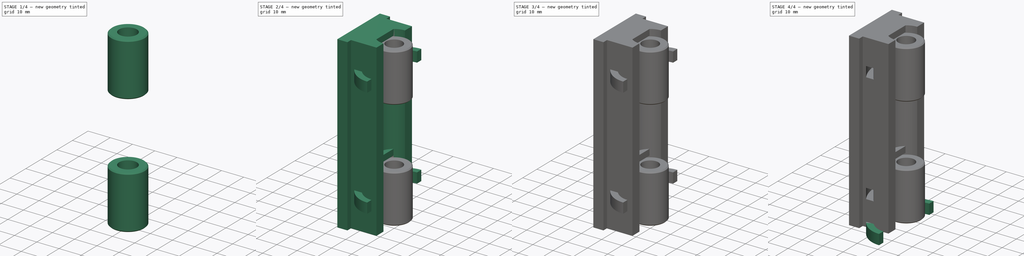
[diagram: build sequence overview — one tinted view per stage of 4, left to right]
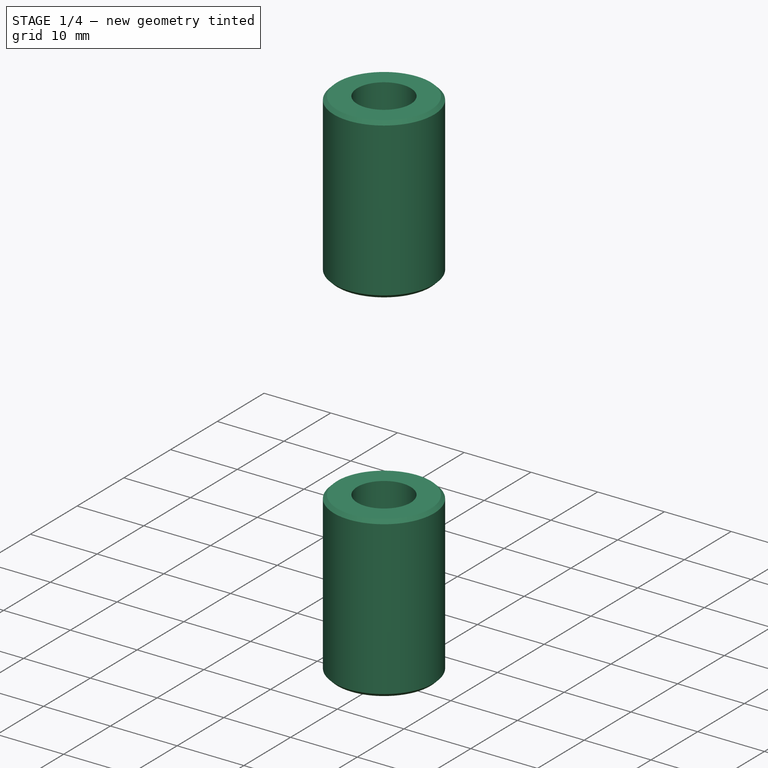
[diagram: stage 1 of 4 — iso view after this stage's code; geometry added in this stage tinted green]
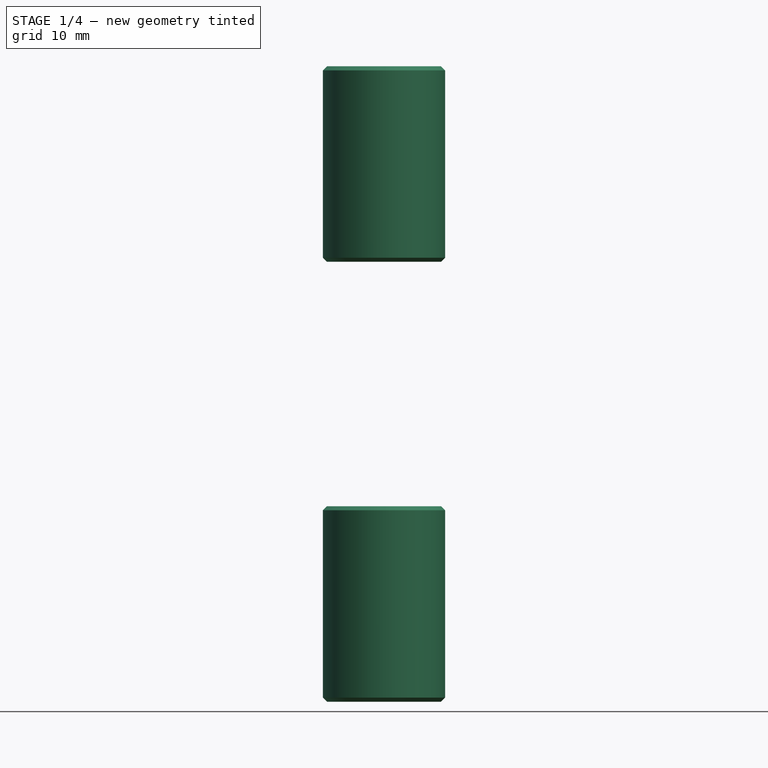
[diagram: stage 1 of 4 — front view after this stage's code; geometry added in this stage tinted green]
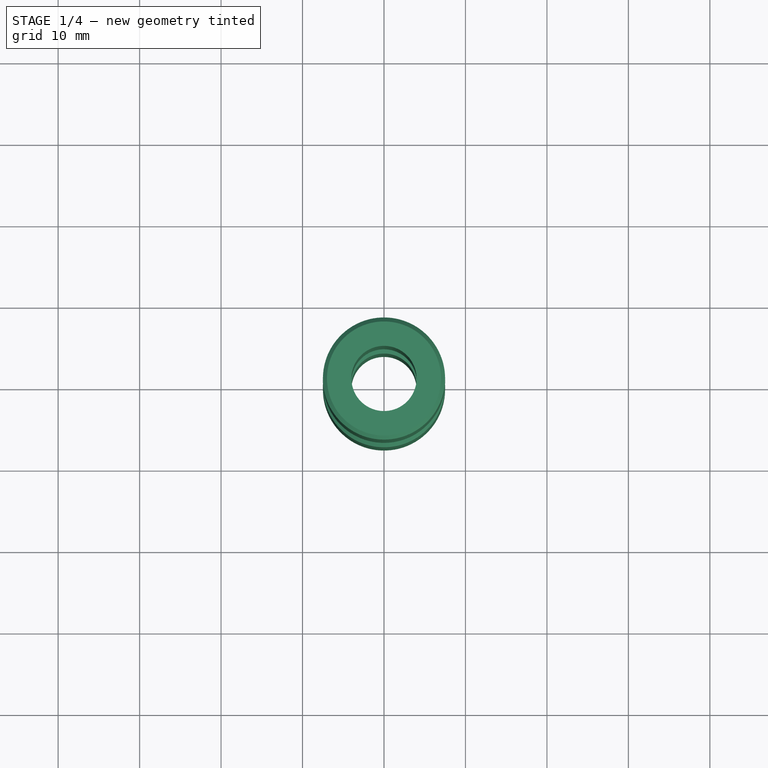
[diagram: stage 1 of 4 — top view after this stage's code; geometry added in this stage tinted green]
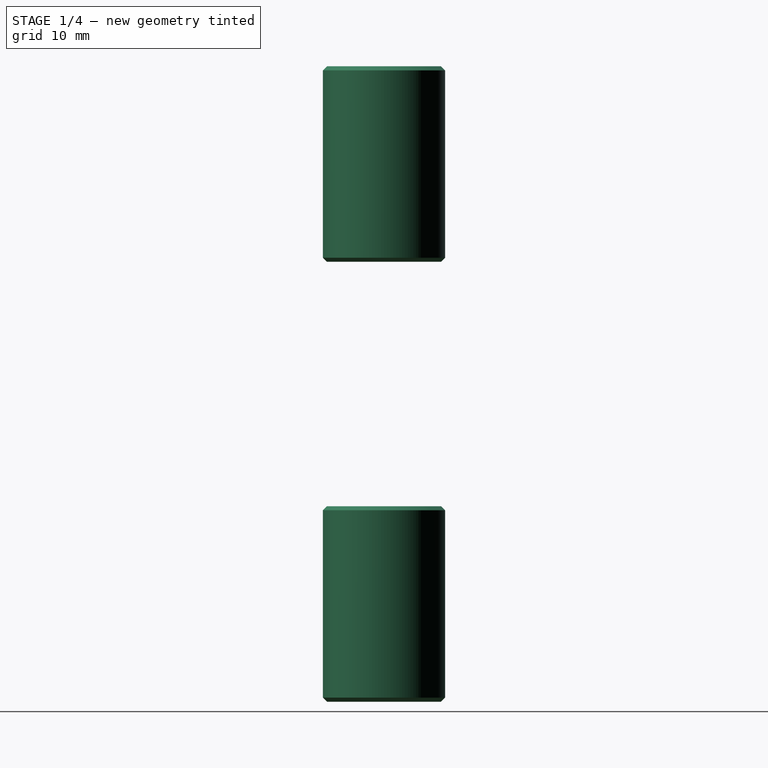
[diagram: stage 1 of 4 — right view after this stage's code; geometry added in this stage tinted green]
FCSTD DOCUMENT  (FreeCAD 0.16R5231 (Git))
Label: BuildPlatformMouting
License: All rights reserved
LicenseURL: http://en.wikipedia.org/wiki/All_rights_reserved
objects: Sketcher::SketchObject×6, Part::Feature×3, Part::MultiFuse×3, Part::FeaturePython×2, PartDesign::Pad×2, PartDesign::Pocket×2, Part::Sweep×1, Part::Cut×1
note: 24 computed .brp shape members not serialized (recipe doc carries the construction recipe); baked Part::Feature solids carry a one-line shape summary decoded from their .brp

FEATURE [Part::FeaturePython] LM8UU_01  # a2plus imported part (geometry in sourceFile) (typed FeaturePython)
  Placement = pos=(0,0,3) rot=(0,0,1;0rad)
  fixedPosition = true
  sourceFile = <path>
  timeLastImport = 1.43812e+09
FEATURE [Part::FeaturePython] LM8UU_02  # a2plus imported part (geometry in sourceFile) (typed FeaturePython)
  Placement = pos=(0,0,57) rot=(0,0,1;0rad)
  fixedPosition = false
  sourceFile = <path>
  timeLastImport = 1.43812e+09
FEATURE [Part::MultiFuse] Fusion001
  Shapes = -> [LM8UU_01,LM8UU_02]
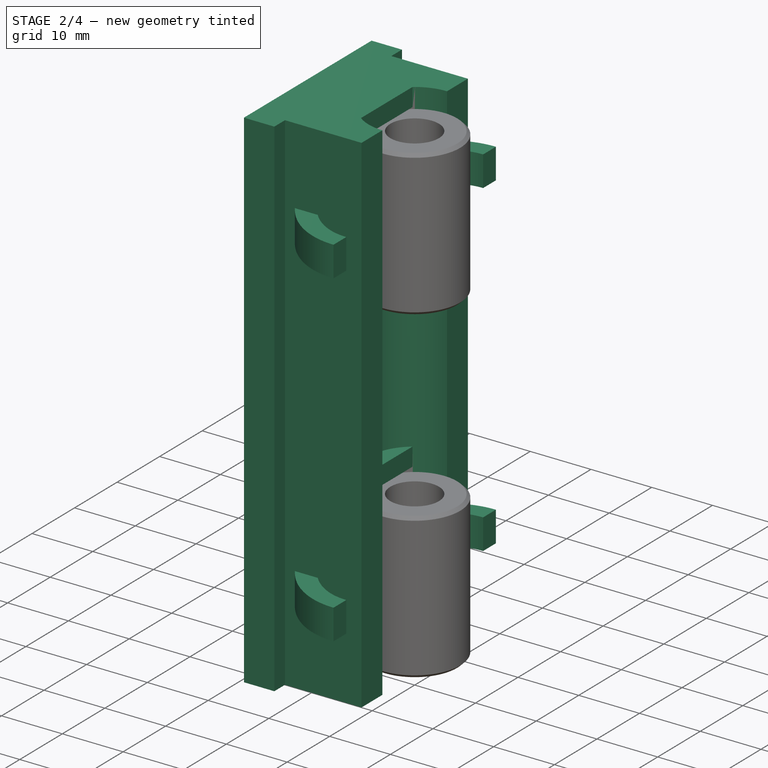
[diagram: stage 2 of 4 — iso view after this stage's code; geometry added in this stage tinted green]
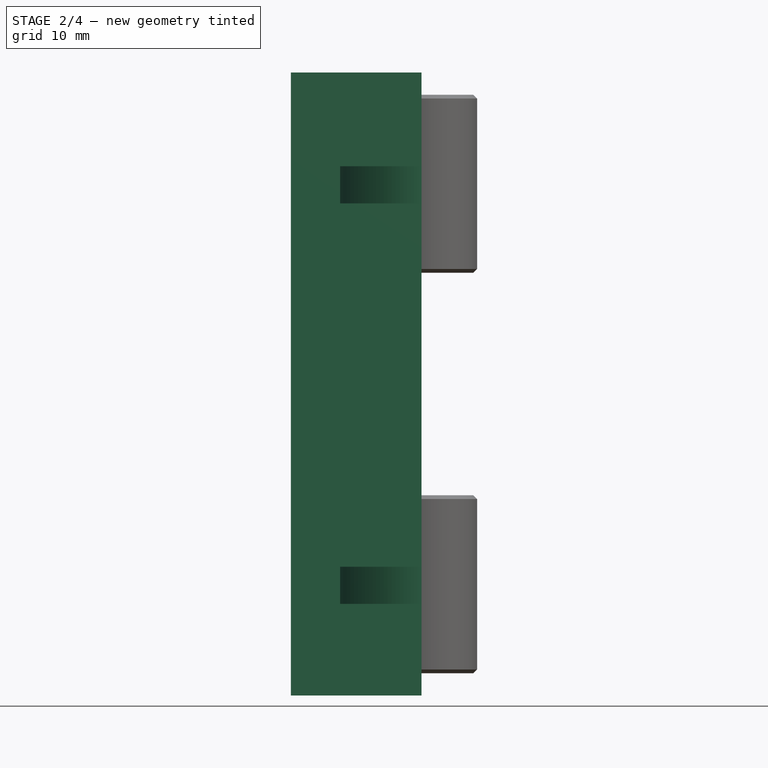
[diagram: stage 2 of 4 — front view after this stage's code; geometry added in this stage tinted green]
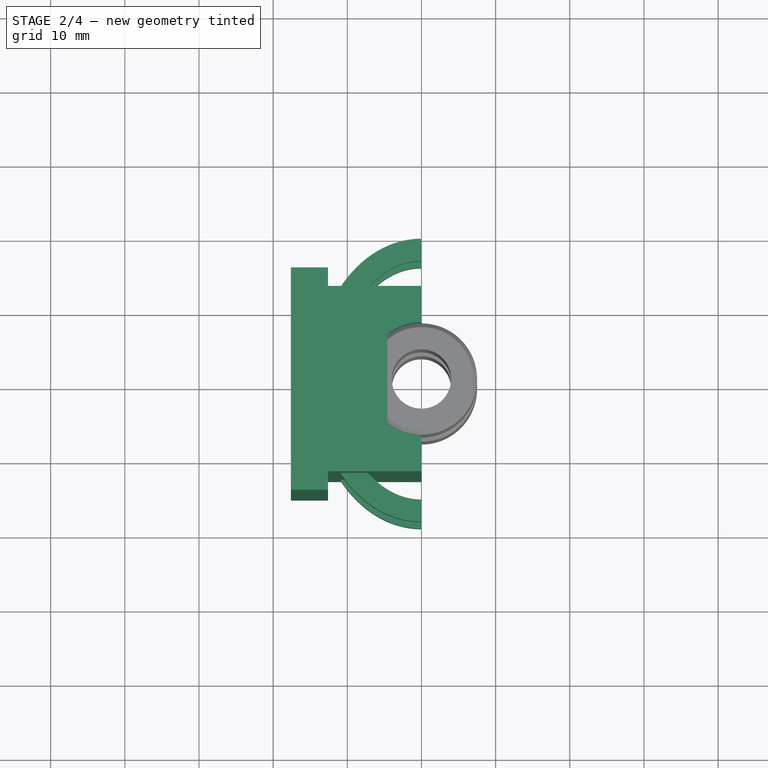
[diagram: stage 2 of 4 — top view after this stage's code; geometry added in this stage tinted green]
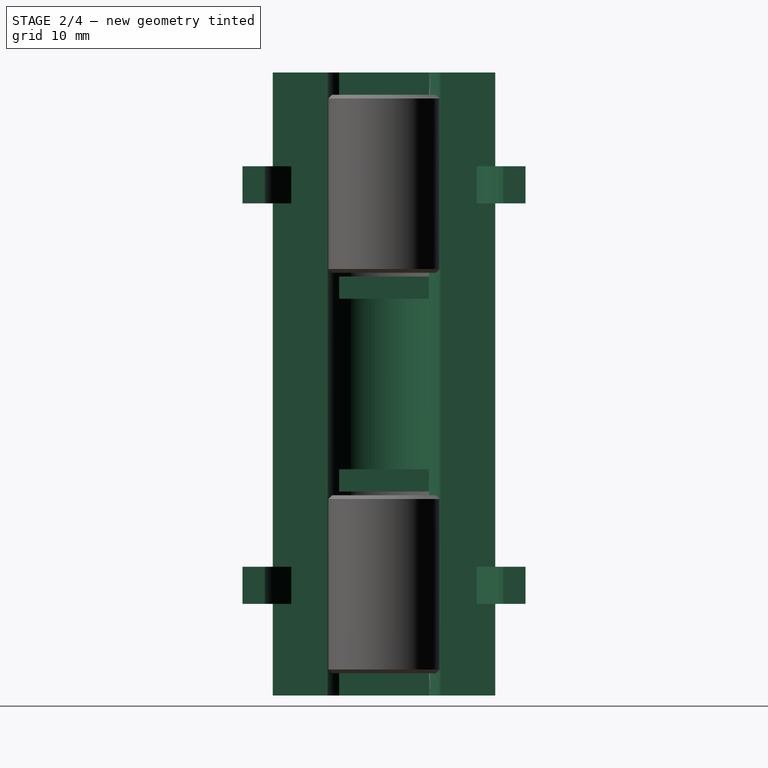
[diagram: stage 2 of 4 — right view after this stage's code; geometry added in this stage tinted green]
FEATURE [Sketcher::SketchObject] Sketch
  sketch-geometry (11):
    g0: ArcOfCircle CenterX=0 CenterY=0 CenterZ=0 NormalX=0 NormalY=0 NormalZ=1 Radius=7.6 StartAngle=1.5708 EndAngle=4.71239
    g1: LineSegment StartX=0 StartY=7.6 StartZ=0 EndX=0 EndY=12.5 EndZ=0
    g2: LineSegment StartX=0 StartY=-7.6 StartZ=0 EndX=0 EndY=-12.5 EndZ=0
    g3: LineSegment StartX=0 StartY=12.5 StartZ=0 EndX=-12.6 EndY=12.5 EndZ=0
    g4: LineSegment StartX=0 StartY=-12.5 StartZ=0 EndX=-12.6 EndY=-12.5 EndZ=0
    g5: LineSegment StartX=-12.6 StartY=12.5 StartZ=0 EndX=-12.6 EndY=15 EndZ=0
    g6: LineSegment StartX=-12.6 StartY=15 StartZ=0 EndX=-17.6 EndY=15 EndZ=0
    g7: LineSegment StartX=-17.6 StartY=15 StartZ=0 EndX=-17.6 EndY=-15 EndZ=0
    g8: LineSegment StartX=-17.6 StartY=-15 StartZ=0 EndX=-12.6 EndY=-15 EndZ=0
    g9: LineSegment StartX=-12.6 StartY=-12.5 StartZ=0 EndX=-12.6 EndY=-15 EndZ=0
    g10: LineSegment [constr] StartX=-12.6 StartY=12.5 StartZ=0 EndX=-12.6 EndY=-12.5 EndZ=0
  constraints (32):
    c: Coincident(g0,g-1)
    c: PointOnObject(g0,g-2)
    c: PointOnObject(g0,g-2)
    c: Radius(g0) = 7.6
    c: Coincident(g1,g0)
    c: Vertical(g1)
    c: Coincident(g2,g0)
    c: Vertical(g2)
    c: DistanceY(g1,g2) = -25
    c: Symmetric(g2,g1,g-1)
    c: Coincident(g3,g1)
    c: Horizontal(g3)
    c: Coincident(g4,g2)
    c: Horizontal(g4)
    c: Coincident(g5,g3)
    c: Vertical(g5)
    c: Coincident(g6,g5)
    c: Horizontal(g6)
    c: Coincident(g7,g6)
    c: Vertical(g7)
    c: Coincident(g8,g7)
    c: Horizontal(g8)
    c: Coincident(g9,g4)
    c: Coincident(g9,g8)
    c: Vertical(g9)
    c: Coincident(g10,g3)
    c: Coincident(g10,g4)
    c: Vertical(g10)
    c: Symmetric(g5,g8,g-1)
    c: DistanceY(g7) = -30
    c: DistanceX(g8,g2) = 12.6
    c: DistanceX(g6,g5) = 5
FEATURE [PartDesign::Pad] Pad
  Length = 84
  Length2 = 100
  Sketch = -> Sketch
  Type = 0
FEATURE [Sketcher::SketchObject] Sketch001
  ExternalGeometry = -> [Pad]
  Placement = pos=(-17.6,0,0) rot=(0.57735,-0.57735,-0.57735;2.0944rad)
  Support = -> Pad [Face6]
  sketch-geometry (16):
    g0: LineSegment StartX=-7.6 StartY=84 StartZ=0 EndX=7.6 EndY=84 EndZ=0
    g1: LineSegment StartX=7.6 StartY=84 StartZ=0 EndX=7.6 EndY=81 EndZ=0
    g2: LineSegment StartX=7.6 StartY=81 StartZ=0 EndX=-7.6 EndY=81 EndZ=0
    g3: LineSegment StartX=-7.6 StartY=81 StartZ=0 EndX=-7.6 EndY=84 EndZ=0
    g4: LineSegment StartX=-7.6 StartY=0 StartZ=0 EndX=7.6 EndY=0 EndZ=0
    g5: LineSegment StartX=7.6 StartY=0 StartZ=0 EndX=7.6 EndY=3 EndZ=0
    g6: LineSegment StartX=7.6 StartY=3 StartZ=0 EndX=-7.6 EndY=3 EndZ=0
    g7: LineSegment StartX=-7.6 StartY=3 StartZ=0 EndX=-7.6 EndY=0 EndZ=0
    g8: LineSegment StartX=-7.6 StartY=56.5 StartZ=0 EndX=7.6 EndY=56.5 EndZ=0
    g9: LineSegment StartX=7.6 StartY=56.5 StartZ=0 EndX=7.6 EndY=53.5 EndZ=0
    g10: LineSegment StartX=7.6 StartY=53.5 StartZ=0 EndX=-7.6 EndY=53.5 EndZ=0
    g11: LineSegment StartX=-7.6 StartY=53.5 StartZ=0 EndX=-7.6 EndY=56.5 EndZ=0
    g12: LineSegment StartX=-7.6 StartY=30.5 StartZ=0 EndX=7.6 EndY=30.5 EndZ=0
    g13: LineSegment StartX=7.6 StartY=30.5 StartZ=0 EndX=7.6 EndY=27.5 EndZ=0
    g14: LineSegment StartX=7.6 StartY=27.5 StartZ=0 EndX=-7.6 EndY=27.5 EndZ=0
    g15: LineSegment StartX=-7.6 StartY=27.5 StartZ=0 EndX=-7.6 EndY=30.5 EndZ=0
  constraints (48):
    c: Coincident(g0,g1)
    c: Coincident(g1,g2)
    c: Coincident(g2,g3)
    c: Coincident(g3,g0)
    c: Horizontal(g0)
    c: Horizontal(g2)
    c: Vertical(g1)
    c: Vertical(g3)
    c: PointOnObject(g0,g-3)
    c: DistanceX(g2) = -15.2
    c: Symmetric(g0,g0,g-2)
    c: DistanceY(g3) = 3
    c: Coincident(g4,g5)
    c: Coincident(g5,g6)
    c: Coincident(g6,g7)
    c: Coincident(g7,g4)
    c: Horizontal(g4)
    c: Horizontal(g6)
    c: Vertical(g5)
    c: Vertical(g7)
    c: PointOnObject(g4,g-1)
    c: Coincident(g8,g9)
    c: Coincident(g9,g10)
    c: Coincident(g10,g11)
    c: Coincident(g11,g8)
    c: Horizontal(g8)
    c: Horizontal(g10)
    c: Vertical(g9)
    c: Vertical(g11)
    c: Coincident(g12,g13)
    c: Coincident(g13,g14)
    c: Coincident(g14,g15)
    c: Coincident(g15,g12)
    c: Horizontal(g12)
    c: Horizontal(g14)
    c: Vertical(g13)
    c: Vertical(g15)
    c: Equal(g3,g11)
    c: Equal(g11,g15)
    c: Equal(g15,g7)
    c: Symmetric(g8,g8,g-2)
    c: Symmetric(g12,g12,g-2)
    c: Symmetric(g6,g5,g-2)
    c: Equal(g2,g8)
    c: Equal(g8,g12)
    c: Equal(g12,g6)
    c: DistanceY(g1,g8) = -24.5
    c: DistanceY(g13,g5) = -24.5
FEATURE [PartDesign::Pad] Pad001
  Length = 13
  Length2 = 100
  Reversed = true
  Sketch = -> Sketch001
  Type = 0
FEATURE [Part::Feature] Sweep001
  Placement = pos=(0,0,15) rot=(0,0,1;0rad)
  shape: bbox 14.96 x 38.17 x 5 mm, 6 faces (baked)
FEATURE [Part::Feature] Sweep002
  Placement = pos=(0,0,69) rot=(0,0,1;0rad)
  shape: bbox 14.96 x 38.17 x 5 mm, 6 faces (baked)
FEATURE [Part::MultiFuse] Fusion
  Shapes = -> [Sweep001,Sweep002]
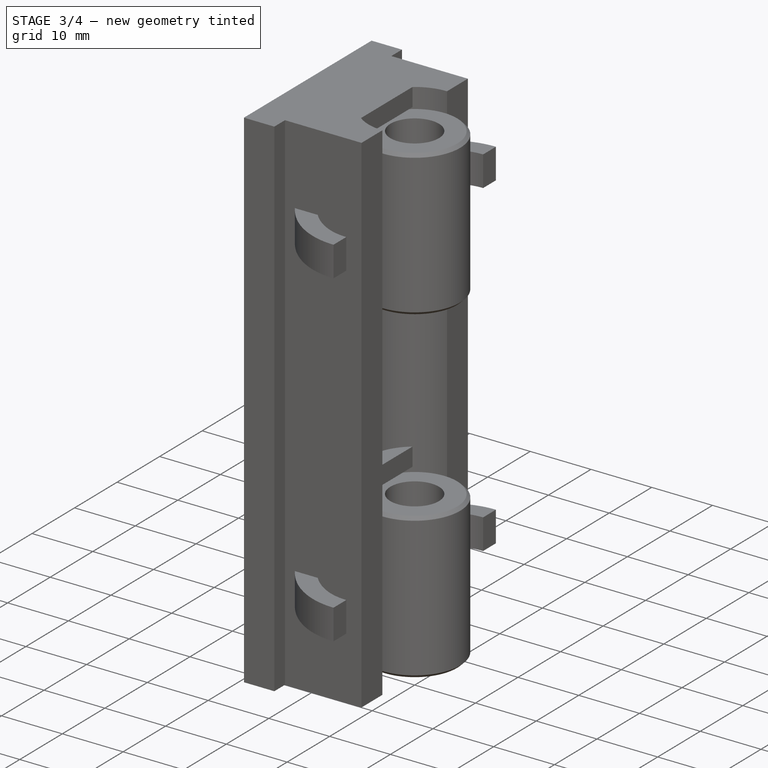
[diagram: stage 3 of 4 — iso view after this stage's code; geometry added in this stage tinted green]
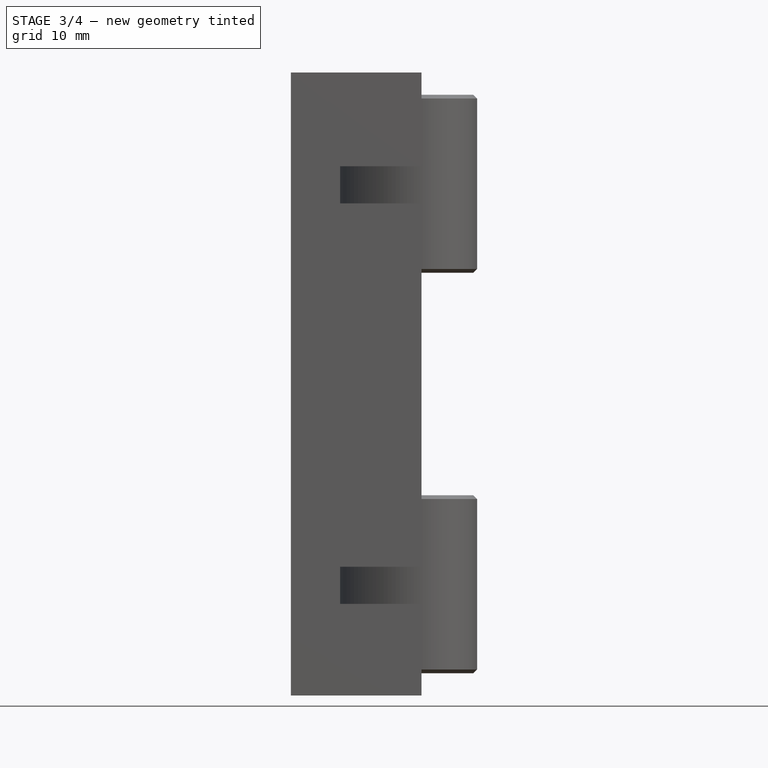
[diagram: stage 3 of 4 — front view after this stage's code; geometry added in this stage tinted green]
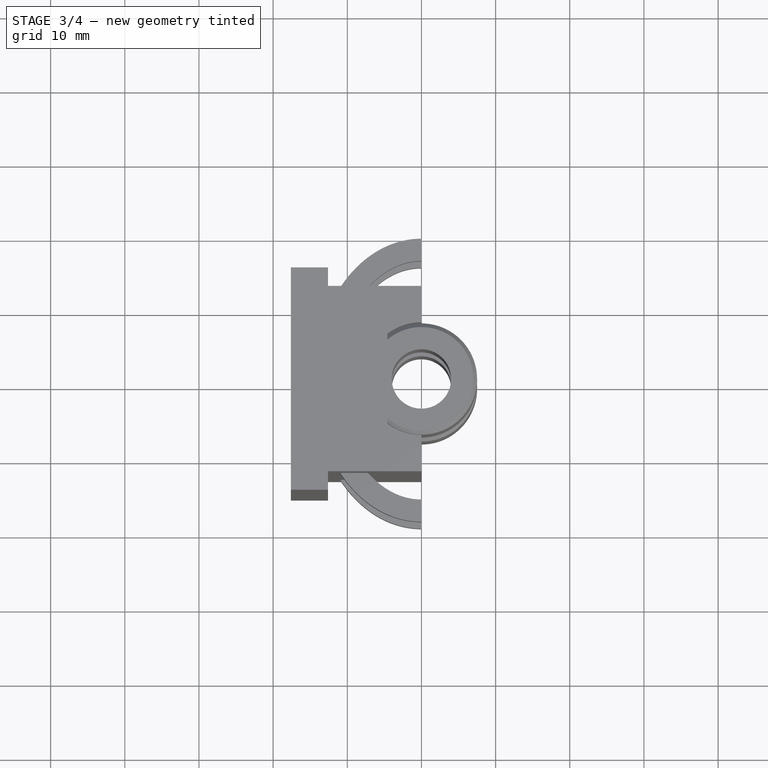
[diagram: stage 3 of 4 — top view after this stage's code; geometry added in this stage tinted green]
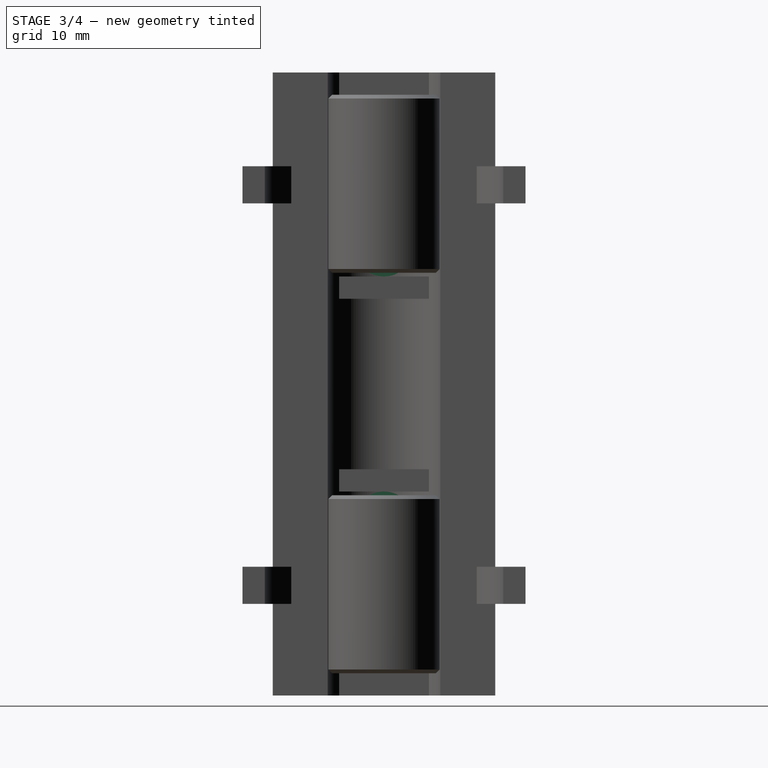
[diagram: stage 3 of 4 — right view after this stage's code; geometry added in this stage tinted green]
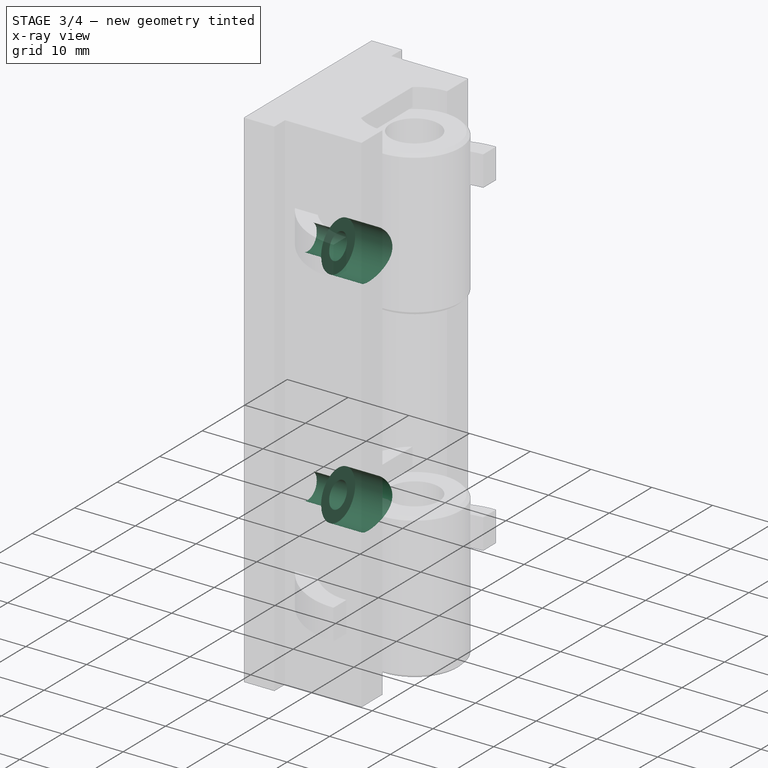
[diagram: stage 3 of 4 — x-ray composite at the iso view; earlier geometry ghosted, this stage's added geometry solid]
FEATURE [Sketcher::SketchObject] Sketch002
  ExternalGeometry = -> [Pad001]
  Placement = pos=(-17.6,0,0) rot=(0.57735,-0.57735,-0.57735;2.0944rad)
  Support = -> Pad001 [Face21]
  sketch-geometry (5):
    g0: Circle CenterX=0 CenterY=60.5 CenterZ=0 NormalX=0 NormalY=0 NormalZ=1 Radius=2.1
    g1: Circle CenterX=0 CenterY=23.5 CenterZ=0 NormalX=0 NormalY=0 NormalZ=1 Radius=2.1
    g2: LineSegment [constr] StartX=0 StartY=84 StartZ=0 EndX=0 EndY=60.5 EndZ=0
    g3: LineSegment [constr] StartX=0 StartY=60.5 StartZ=0 EndX=0 EndY=23.5 EndZ=0
    g4: LineSegment [constr] StartX=0 StartY=23.5 StartZ=0 EndX=0 EndY=0 EndZ=0
  constraints (12):
    c: PointOnObject(g0,g-2)
    c: Radius(g0) = 2.1
    c: PointOnObject(g1,g-2)
    c: Equal(g1,g0)
    c: PointOnObject(g2,g-3)
    c: Coincident(g2,g0)
    c: Coincident(g3,g0)
    c: Coincident(g3,g1)
    c: Coincident(g4,g1)
    c: Coincident(g4,g-1)
    c: Equal(g2,g4)
    c: DistanceY(g1,g0) = 37
FEATURE [PartDesign::Pocket] Pocket
  Length = 15
  Sketch = -> Sketch002
  Type = 0
FEATURE [Sketcher::SketchObject] Sketch003
  ExternalGeometry = -> [Pocket]
  Placement = pos=(0,0,0) rot=(0.57735,0.57735,0.57735;2.0944rad)
  Support = -> Pocket [Face1]
  sketch-geometry (2):
    g0: Circle CenterX=0 CenterY=60.5 CenterZ=0 NormalX=0 NormalY=0 NormalZ=1 Radius=4
    g1: Circle CenterX=0 CenterY=23.5 CenterZ=0 NormalX=0 NormalY=0 NormalZ=1 Radius=4
  constraints (4):
    c: Coincident(g0,g-3)
    c: Coincident(g1,g-4)
    c: Radius(g0) = 4
    c: Equal(g0,g1)
FEATURE [PartDesign::Pocket] Pocket001
  Length = 12.6
  Sketch = -> Sketch003
  Type = 0
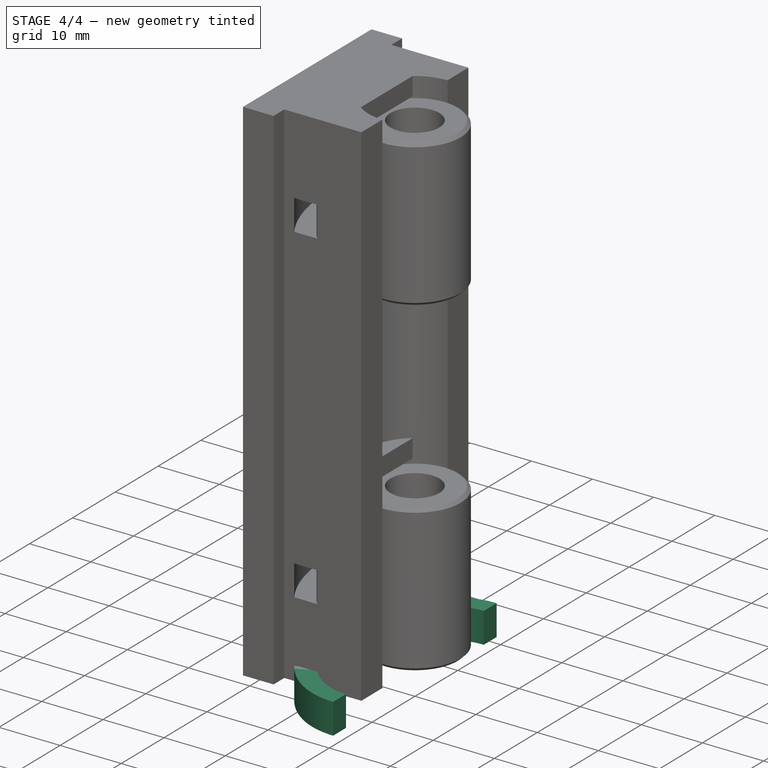
[diagram: stage 4 of 4 — iso view after this stage's code; geometry added in this stage tinted green]
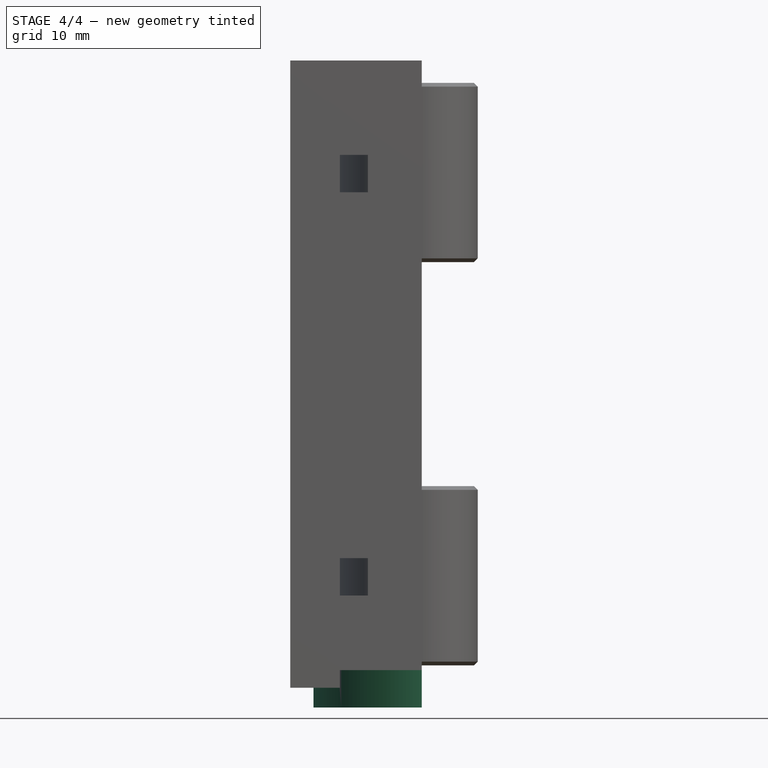
[diagram: stage 4 of 4 — front view after this stage's code; geometry added in this stage tinted green]
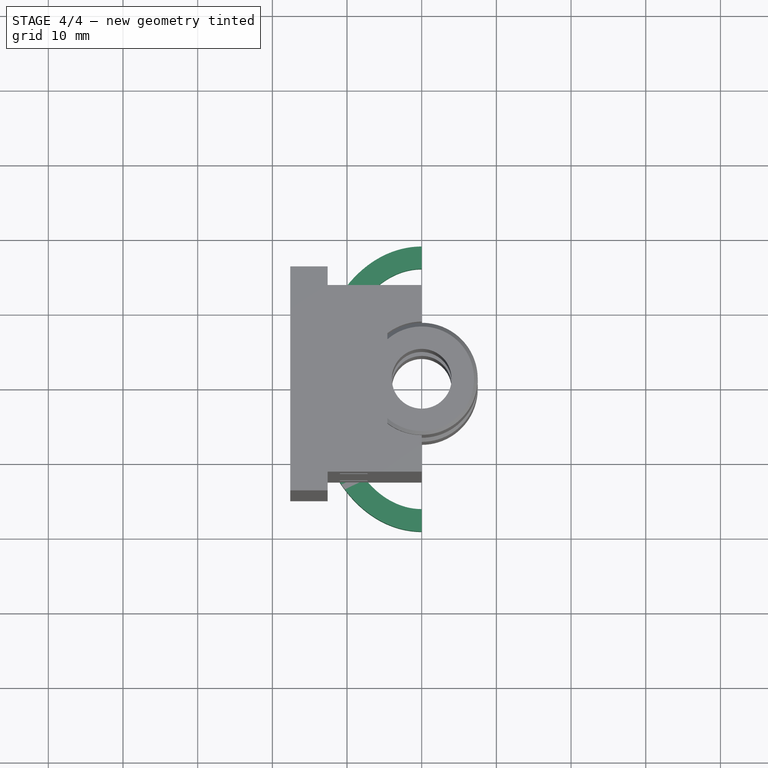
[diagram: stage 4 of 4 — top view after this stage's code; geometry added in this stage tinted green]
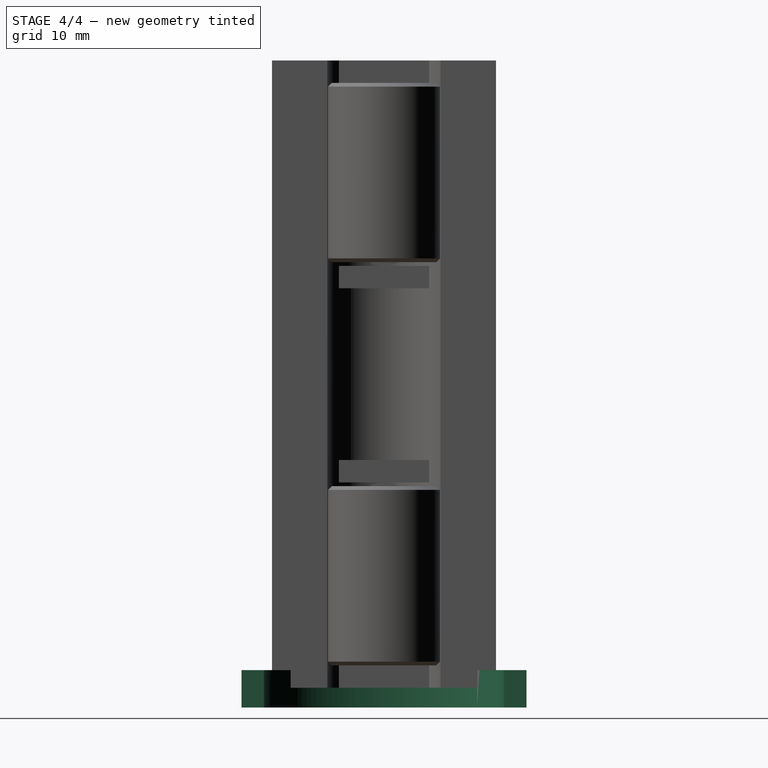
[diagram: stage 4 of 4 — right view after this stage's code; geometry added in this stage tinted green]
FEATURE [Sketcher::SketchObject] Sketch004
  sketch-geometry (5):
    g0: ArcOfEllipse CenterX=0 CenterY=0 CenterZ=0 NormalX=0 NormalY=0 NormalZ=1 MajorRadius=17.5 MinorRadius=12.9 AngleXU=1.5708 StartAngle=0 EndAngle=3.14159
    g1: LineSegment [constr] StartX=0 StartY=17.5 StartZ=0 EndX=0 EndY=-17.5 EndZ=0
    g2: LineSegment [constr] StartX=-12.9 StartY=0 StartZ=0 EndX=12.9 EndY=0 EndZ=0
    g3: GeomPoint [constr] X=0 Y=11.8254 Z=0
    g4: GeomPoint [constr] X=0 Y=-11.8254 Z=0
  constraints (7):
    c: InternalAlignment(g1-g4 -> g0) x4
    c: Coincident(g0,g-1)
    c: PointOnObject(g0,g-2)
    c: PointOnObject(g0,g-2)
    c: PointOnObject(g2,g-1)
    c: DistanceX(g-1,g2) = -12.9
    c: DistanceY(g0,g0) = -35
FEATURE [Sketcher::SketchObject] Sketch005
  Placement = pos=(0,0,0) rot=(0.57735,0.57735,0.57735;2.0944rad)
  sketch-geometry (6):
    g0: LineSegment StartX=-19.0842 StartY=2.35963 StartZ=0 EndX=-16.0842 EndY=2.35963 EndZ=0
    g1: LineSegment StartX=-16.0842 StartY=2.35963 StartZ=0 EndX=-16.0842 EndY=-2.64037 EndZ=0
    g2: LineSegment StartX=-16.0842 StartY=-2.64037 StartZ=0 EndX=-19.0842 EndY=-2.64037 EndZ=0
    g3: LineSegment StartX=-19.0842 StartY=-2.64037 StartZ=0 EndX=-19.0842 EndY=2.35963 EndZ=0
    g4: LineSegment [constr] StartX=-16.0842 StartY=2.35963 StartZ=0 EndX=-19.0842 EndY=-2.64037 EndZ=0
    g5: LineSegment [constr] StartX=-17.5 StartY=0 StartZ=0 EndX=0 EndY=0 EndZ=0
  constraints (16):
    c: Coincident(g0,g1)
    c: Coincident(g1,g2)
    c: Coincident(g2,g3)
    c: Coincident(g3,g0)
    c: Horizontal(g0)
    c: Horizontal(g2)
    c: Vertical(g1)
    c: Vertical(g3)
    c: DistanceY(g3) = 5
    c: DistanceX(g0) = 3
    c: Coincident(g4,g0)
    c: Coincident(g4,g2)
    c: PointOnObject(g5,g4)
    c: Coincident(g5,g-1)
    c: Horizontal(g5)
    c: DistanceX(g5) = 17.5
FEATURE [Part::Sweep] Sweep
  Frenet = false
  Sections = -> [Sketch005]
  Solid = true
  Spine = -> Sketch004
  Transition = 1
FEATURE [Part::Cut] Cut
  Base = -> Pocket001
  Tool = -> Fusion
FEATURE [Part::MultiFuse] Fusion002
  Shapes = -> [Fusion001,Cut]
FEATURE [Part::Feature] Fusion002001  label="BuildPlatformMounting"
  shape: bbox 25.1 x 38.17 x 84 mm, 60 faces (baked)
note: 2 file-system paths scrubbed to <path> (originals preserved in the JSON sidecar)
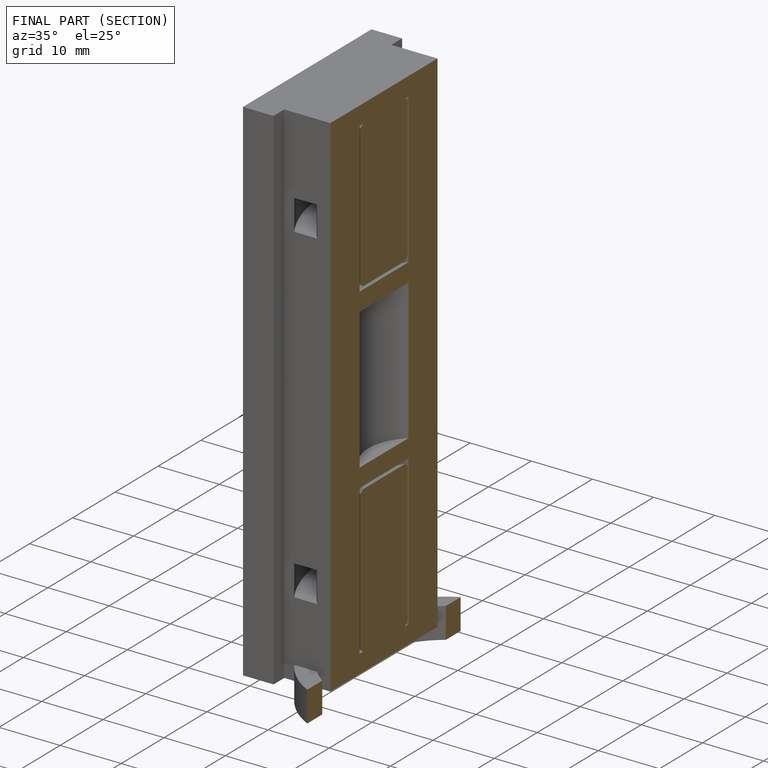
[diagram: finished part — half-section view (interior)]
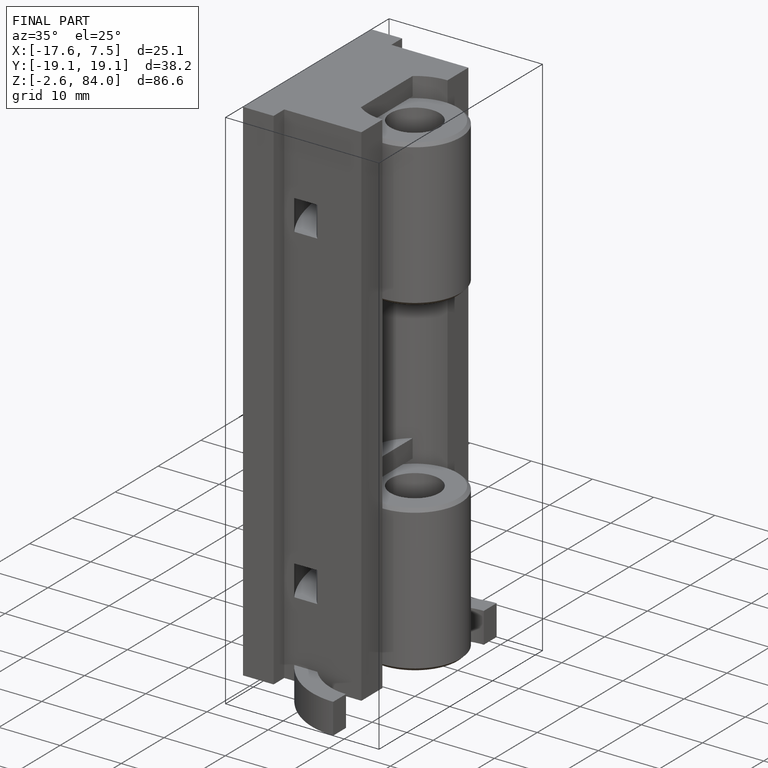
[diagram: finished part — iso view with bounding-box wireframe]
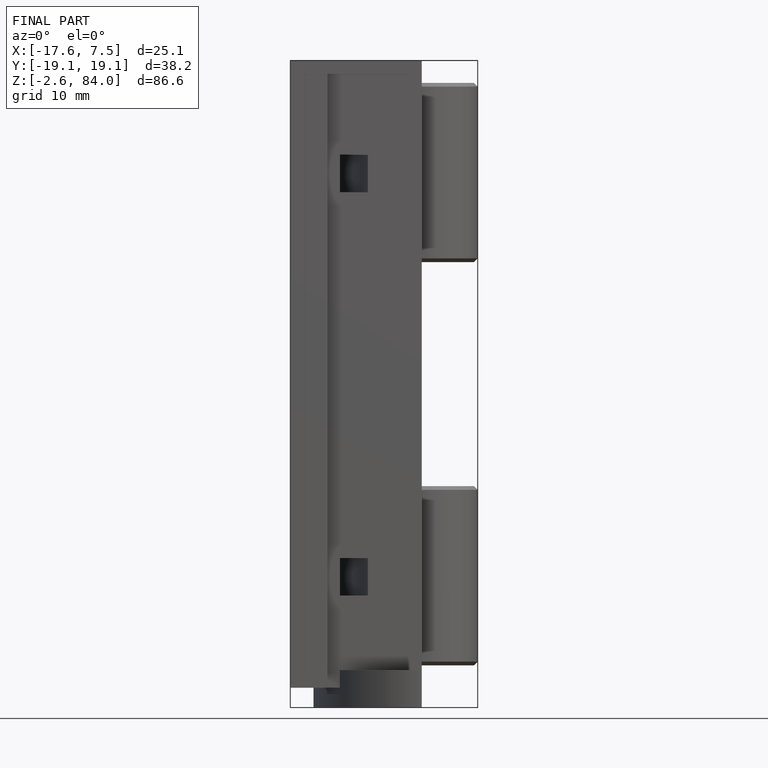
[diagram: finished part — front view with bounding-box wireframe]
